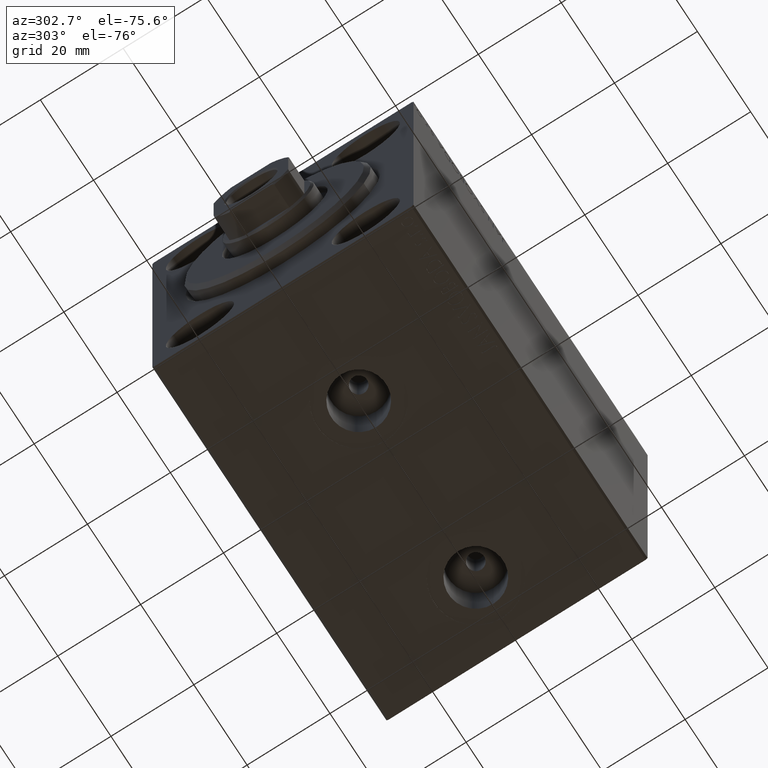
[diagram: clean part render]
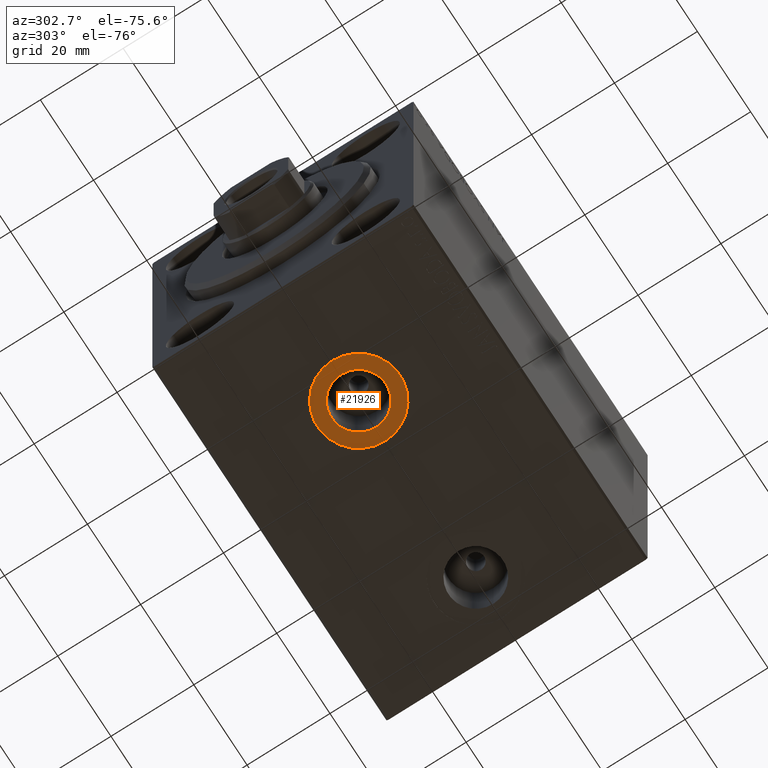
[diagram: same view with one face highlighted and labeled with its STEP entity id]
A machine part, auxiliary view. The second image highlights one B-rep face of the part: STEP entity #21926.
In plain terms, the highlighted planar face has unit normal (0, 0, -1).
Its self-contained STEP definition (entity closure, byte-faithful):
#775 = DIRECTION ( 'NONE',  ( -1.000000000000000000, 0.000000000000000000, 0.000000000000000000 ) ) ;
#1644 = EDGE_CURVE ( 'NONE', #12666, #29294, #38174, .T. ) ;
#1690 = AXIS2_PLACEMENT_3D ( 'NONE', #9005, #19083, #22962 ) ;
#2621 = CARTESIAN_POINT ( 'NONE',  ( 28.50000000000000000, -6.196433163362530470E-15, -42.40000000000000568 ) ) ;
#3007 = CARTESIAN_POINT ( 'NONE',  ( 35.07999999999999829, -5.390615569523572217E-15, -42.40000000000000568 ) ) ;
#3182 = VERTEX_POINT ( 'NONE', #34278 ) ;
#7171 = EDGE_CURVE ( 'NONE', #37043, #3182, #11883, .T. ) ;
#7517 = PLANE ( 'NONE',  #13644 ) ;
#7935 = ORIENTED_EDGE ( 'NONE', *, *, #1644, .F. ) ;
#9005 = CARTESIAN_POINT ( 'NONE',  ( 28.50000000000000000, -6.196433163362530470E-15, -42.40000000000000568 ) ) ;
#11155 = DIRECTION ( 'NONE',  ( 0.000000000000000000, 0.000000000000000000, -1.000000000000000000 ) ) ;
#11570 = ORIENTED_EDGE ( 'NONE', *, *, #7171, .T. ) ;
#11883 = CIRCLE ( 'NONE', #1690, 9.999999999999998224 ) ;
#12666 = VERTEX_POINT ( 'NONE', #24812 ) ;
#12922 = AXIS2_PLACEMENT_3D ( 'NONE', #28458, #17485, #775 ) ;
#13644 = AXIS2_PLACEMENT_3D ( 'NONE', #21252, #31771, #13936 ) ;
#13711 = FACE_BOUND ( 'NONE', #39640, .T. ) ;
#13936 = DIRECTION ( 'NONE',  ( -1.000000000000000000, 0.000000000000000000, -0.000000000000000000 ) ) ;
#16789 = EDGE_LOOP ( 'NONE', ( #11570, #30663 ) ) ;
#17485 = DIRECTION ( 'NONE',  ( 0.000000000000000000, 0.000000000000000000, -1.000000000000000000 ) ) ;
#19083 = DIRECTION ( 'NONE',  ( 0.000000000000000000, 0.000000000000000000, -1.000000000000000000 ) ) ;
#21252 = CARTESIAN_POINT ( 'NONE',  ( 0.000000000000000000, 0.000000000000000000, -42.40000000000000568 ) ) ;
#21906 = CARTESIAN_POINT ( 'NONE',  ( 28.50000000000000000, -6.196433163362530470E-15, -42.40000000000000568 ) ) ;
#21926 = ADVANCED_FACE ( 'NONE', ( #13711, #38177 ), #7517, .T. ) ;
#22092 = EDGE_CURVE ( 'NONE', #29294, #12666, #41377, .T. ) ;
#22962 = DIRECTION ( 'NONE',  ( -1.000000000000000000, 0.000000000000000000, 0.000000000000000000 ) ) ;
#24812 = CARTESIAN_POINT ( 'NONE',  ( 21.91999999999999815, -6.196433163362530470E-15, -42.40000000000000568 ) ) ;
#28458 = CARTESIAN_POINT ( 'NONE',  ( 28.50000000000000000, -6.196433163362530470E-15, -42.40000000000000568 ) ) ;
#29294 = VERTEX_POINT ( 'NONE', #3007 ) ;
#30130 = EDGE_CURVE ( 'NONE', #3182, #37043, #42917, .T. ) ;
#30663 = ORIENTED_EDGE ( 'NONE', *, *, #30130, .T. ) ;
#31611 = AXIS2_PLACEMENT_3D ( 'NONE', #21906, #11155, #39725 ) ;
#31771 = DIRECTION ( 'NONE',  ( 0.000000000000000000, 0.000000000000000000, -1.000000000000000000 ) ) ;
#32692 = AXIS2_PLACEMENT_3D ( 'NONE', #2621, #40801, #45126 ) ;
#34278 = CARTESIAN_POINT ( 'NONE',  ( 38.50000000000000000, -4.971786364215177411E-15, -42.40000000000000568 ) ) ;
#36747 = CARTESIAN_POINT ( 'NONE',  ( 18.50000000000000355, -6.196433163362530470E-15, -42.40000000000000568 ) ) ;
#37043 = VERTEX_POINT ( 'NONE', #36747 ) ;
#37762 = ORIENTED_EDGE ( 'NONE', *, *, #22092, .F. ) ;
#38174 = CIRCLE ( 'NONE', #31611, 6.580000000000002736 ) ;
#38177 = FACE_OUTER_BOUND ( 'NONE', #16789, .T. ) ;
#39640 = EDGE_LOOP ( 'NONE', ( #7935, #37762 ) ) ;
#39725 = DIRECTION ( 'NONE',  ( -1.000000000000000000, 0.000000000000000000, 0.000000000000000000 ) ) ;
#40801 = DIRECTION ( 'NONE',  ( 0.000000000000000000, 0.000000000000000000, -1.000000000000000000 ) ) ;
#41377 = CIRCLE ( 'NONE', #12922, 6.580000000000002736 ) ;
#42917 = CIRCLE ( 'NONE', #32692, 9.999999999999998224 ) ;
#45126 = DIRECTION ( 'NONE',  ( -1.000000000000000000, 0.000000000000000000, 0.000000000000000000 ) ) ;